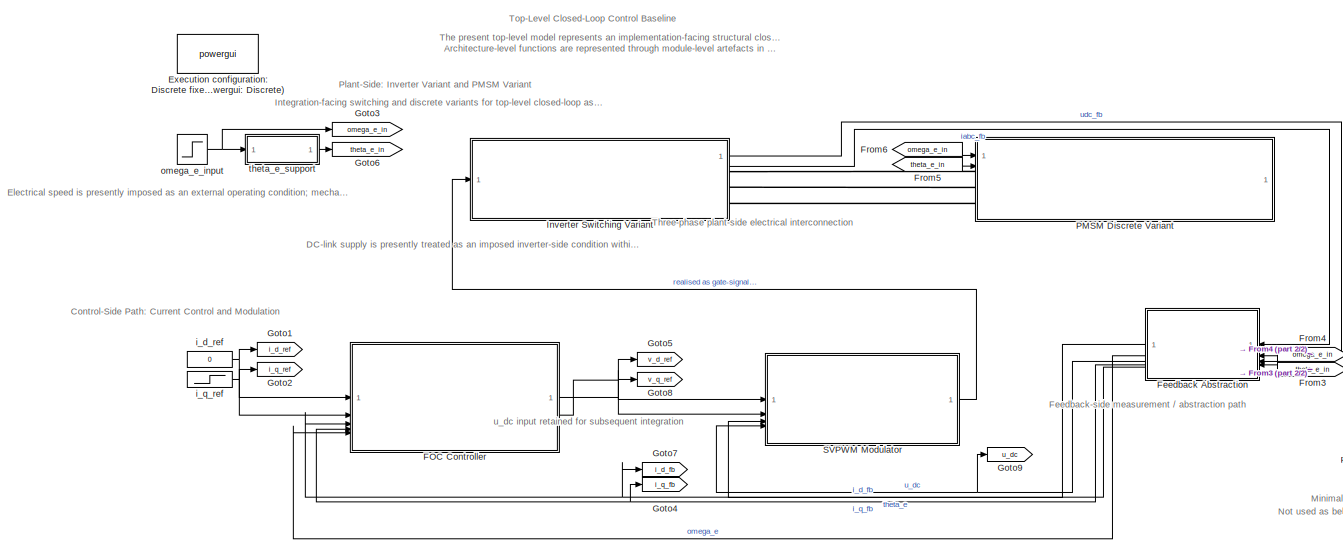
[diagram: root canvas - part 1/2, most of the canvas]
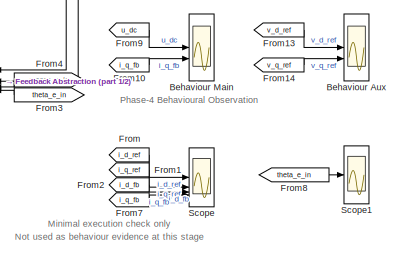
[diagram: root canvas - part 2/2, bottom right region]
MODEL slx_24abce73f3e8
KIND model
CONFIG AbsTol = auto
CONFIG EnableMultiTasking = off
CONFIG FixedStep = Ts
CONFIG MaxStep = auto
CONFIG MinStep = auto
CONFIG RelTol = 1e-3
CONFIG SampleTimeConstraint = Unconstrained
CONFIG SolverName = FixedStepDiscrete
CONFIG StartTime = 0.0
CONFIG StopTime = 0.1
WORKSPACE source: MATLAB code (in-file)
WORKSPACE Ts = 1e-6  (= 1e-06)
WORKSPACE i_d_ref_default = 0
WORKSPACE i_q_ref_default = 10
WORKSPACE omega_e_default = 300
WORKSPACE i_q_ref_step_t = 0.02
WORKSPACE i_q_ref_step_init = i_q_ref_default  (= 10)
WORKSPACE i_q_ref_step_final = i_q_ref_default  (= 10)
WORKSPACE omega_e_step_t = 0.02
WORKSPACE omega_e_init = omega_e_default  (= 300)
WORKSPACE omega_e_step_final = omega_e_default  (= 300)
BLOCK [Scope] Behaviour Aux
  Floating = off
  NumInputPorts = 2
  ScopeSpecificationString = Simulink.scopes.TimeScopeBlockCfg('CurrentConfiguration', extmgr.ConfigurationSet(extmgr.Configuration('Core','General UI',true),extmgr.Configuration('Core','Source UI',true),extmgr.Configuration('Sources','WiredSimulink',true,'DataLoggingVariableName','scope_aux','DataLoggingSaveFormat','StructureWithTime'),extmgr.Configuration('Visuals','Time Domain',true,'SerializedDisplays',{struct('MinYLimRea...<+1557ch>
BLOCK [Scope] Behaviour Main
  Floating = off
  NumInputPorts = 2
  ScopeSpecificationString = Simulink.scopes.TimeScopeBlockCfg('CurrentConfiguration', extmgr.ConfigurationSet(extmgr.Configuration('Core','General UI',true),extmgr.Configuration('Core','Source UI',true),extmgr.Configuration('Sources','WiredSimulink',true,'DataLoggingVariableName','case_scope','DataLoggingSaveFormat','StructureWithTime'),extmgr.Configuration('Visuals','Time Domain',true,'SerializedDisplays',{struct('MinYLimRe...<+2068ch>
BLOCK [Reference] Execution configuration: Discrete fixed-step (Ts = 1e-6 s) SPS environment (powergui: Discrete)  REF=sps_lib/powergui
  LibrarySourceBlock = sps_lib/powergui
  NameLocation = right
  Priority = 1
  SourceBlock = sps_lib/powergui
  SourceType = PSB option menu block
BLOCK [ModelReference] FOC Controller
  ModelNameDialog = foc_controller.slx
  ModelReferenceVersion = 1.26
  PortSchema = {"entries":[{"content":{"sides":[{"content":{"connectorIds":["In1","In2","In5","In3","In4"]},"type":"ConnectorPlacement.EquallySpacedRectSide","uuid":"ef112b4b-a133-4498-b633-78f8f1506d01"},{"content":{"connectorIds":["Out1","Out2"],"side":"RIGHT"},"type":"ConnectorPlacement.EquallySpacedRectSide","uuid":"9847a18b-aaef-4243-aa5c-65f99a7910c1"},{"content":{"side":"TOP"},"type":"ConnectorPlacement.E...<+253ch>
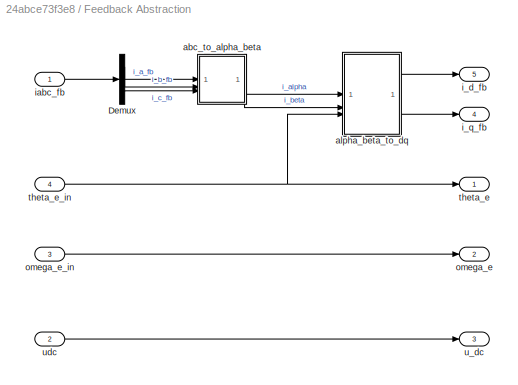
BLOCK [SubSystem] Feedback Abstraction
BLOCK [Demux] Feedback Abstraction/Demux
  Outputs = 3
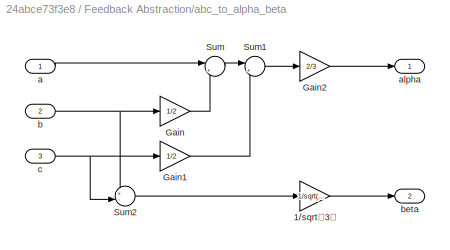
BLOCK [SubSystem] Feedback Abstraction/abc_to_alpha_beta
BLOCK [Gain] Feedback Abstraction/abc_to_alpha_beta/1//sqrt（3）
  Gain = 1/sqrt(3)
BLOCK [Gain] Feedback Abstraction/abc_to_alpha_beta/Gain
  Gain = 1/2
BLOCK [Gain] Feedback Abstraction/abc_to_alpha_beta/Gain1
  Gain = 1/2
BLOCK [Gain] Feedback Abstraction/abc_to_alpha_beta/Gain2
  Gain = 2/3
BLOCK [Sum] Feedback Abstraction/abc_to_alpha_beta/Sum
  Inputs = |+-
BLOCK [Sum] Feedback Abstraction/abc_to_alpha_beta/Sum1
  Inputs = |+-
BLOCK [Sum] Feedback Abstraction/abc_to_alpha_beta/Sum2
  Inputs = +-|
BLOCK [Inport] Feedback Abstraction/abc_to_alpha_beta/a
BLOCK [Outport] Feedback Abstraction/abc_to_alpha_beta/alpha
BLOCK [Inport] Feedback Abstraction/abc_to_alpha_beta/b
  Port = 2
BLOCK [Outport] Feedback Abstraction/abc_to_alpha_beta/beta
  Port = 2
BLOCK [Inport] Feedback Abstraction/abc_to_alpha_beta/c
  Port = 3
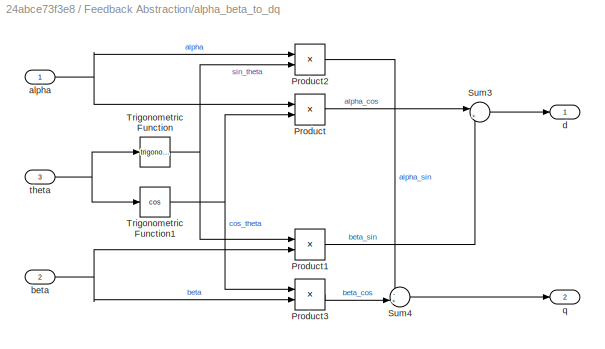
BLOCK [SubSystem] Feedback Abstraction/alpha_beta_to_dq
BLOCK [Product] Feedback Abstraction/alpha_beta_to_dq/Product
BLOCK [Product] Feedback Abstraction/alpha_beta_to_dq/Product1
BLOCK [Product] Feedback Abstraction/alpha_beta_to_dq/Product2
BLOCK [Product] Feedback Abstraction/alpha_beta_to_dq/Product3
BLOCK [Sum] Feedback Abstraction/alpha_beta_to_dq/Sum3
  Inputs = |++
BLOCK [Sum] Feedback Abstraction/alpha_beta_to_dq/Sum4
  Inputs = -+|
BLOCK [Trigonometry] Feedback Abstraction/alpha_beta_to_dq/Trigonometric Function
BLOCK [Trigonometry] Feedback Abstraction/alpha_beta_to_dq/Trigonometric Function1
  Operator = cos
BLOCK [Inport] Feedback Abstraction/alpha_beta_to_dq/alpha
BLOCK [Inport] Feedback Abstraction/alpha_beta_to_dq/beta
  Port = 2
BLOCK [Outport] Feedback Abstraction/alpha_beta_to_dq/d
BLOCK [Outport] Feedback Abstraction/alpha_beta_to_dq/q
  Port = 2
BLOCK [Inport] Feedback Abstraction/alpha_beta_to_dq/theta
  Port = 3
BLOCK [Outport] Feedback Abstraction/i_d_fb
  Port = 5
BLOCK [Outport] Feedback Abstraction/i_q_fb
  Port = 4
BLOCK [Inport] Feedback Abstraction/iabc_fb
BLOCK [Outport] Feedback Abstraction/omega_e
  Port = 2
BLOCK [Inport] Feedback Abstraction/omega_e_in
  Port = 3
BLOCK [Outport] Feedback Abstraction/theta_e
BLOCK [Inport] Feedback Abstraction/theta_e_in
  Port = 4
BLOCK [Outport] Feedback Abstraction/u_dc
  Port = 3
BLOCK [Inport] Feedback Abstraction/udc
  Port = 2
BLOCK [From] From
  GotoTag = i_d_ref
BLOCK [From] From1
  GotoTag = i_q_ref
BLOCK [From] From10
  GotoTag = i_q_fb
BLOCK [From] From13
  GotoTag = v_d_ref
BLOCK [From] From14
  GotoTag = v_q_ref
BLOCK [From] From2
  GotoTag = i_d_fb
BLOCK [From] From3
  GotoTag = theta_e_in
BLOCK [From] From4
  GotoTag = omega_e_in
BLOCK [From] From5
  GotoTag = theta_e_in
BLOCK [From] From6
  GotoTag = omega_e_in
BLOCK [From] From7
  GotoTag = i_q_fb
BLOCK [From] From8
  GotoTag = theta_e_in
BLOCK [From] From9
  GotoTag = u_dc
BLOCK [Goto] Goto1
  GotoTag = i_d_ref
  NameLocation = top
BLOCK [Goto] Goto2
  GotoTag = i_q_ref
  NameLocation = top
BLOCK [Goto] Goto3
  GotoTag = omega_e_in
  NameLocation = top
BLOCK [Goto] Goto4
  GotoTag = i_q_fb
  NameLocation = top
BLOCK [Goto] Goto5
  GotoTag = v_d_ref
  NameLocation = top
BLOCK [Goto] Goto6
  GotoTag = theta_e_in
  NameLocation = top
BLOCK [Goto] Goto7
  GotoTag = i_d_fb
  NameLocation = top
BLOCK [Goto] Goto8
  GotoTag = v_q_ref
  NameLocation = top
BLOCK [Goto] Goto9
  GotoTag = u_dc
  NameLocation = top
BLOCK [SubSystem] Inverter Switching Variant
  ReferencedSubsystem = inverter_switching_variant_closed_loop
BLOCK [SubSystem] PMSM Discrete Variant
  Ld = 2e-3
  Lq = 2e-3
  ReferencedSubsystem = pmsm_discrete_variant_closed_loop
  Rs = 0.05
  lambda_f = 0.1
BLOCK [ModelReference] SVPWM Modulator
  ModelNameDialog = svpwm_modulator.slx
  ModelReferenceVersion = 1.34
  PortSchema = {"entries":[{"content":{"sides":[{"content":{"connectorIds":["In1","In2","In4","In3"]},"type":"ConnectorPlacement.EquallySpacedRectSide","uuid":"0e0645a3-2a27-4c15-9a47-960d3777f31f"},{"content":{"connectorIds":["Out1"],"side":"RIGHT"},"type":"ConnectorPlacement.EquallySpacedRectSide","uuid":"17890dc1-ee5f-46a3-bfa4-af9c9726f2d2"},{"content":{"side":"TOP"},"type":"ConnectorPlacement.EquallySpacedR...<+240ch>
BLOCK [Scope] Scope
  Floating = off
  NumInputPorts = 4
  ScopeSpecificationString = Simulink.scopes.TimeScopeBlockCfg('CurrentConfiguration', extmgr.ConfigurationSet(extmgr.Configuration('Core','General UI',true),extmgr.Configuration('Core','Source UI',true),extmgr.Configuration('Sources','WiredSimulink',true,'DataLoggingVariableName','ScopeData1','SampleTime','Ts'),extmgr.Configuration('Visuals','Time Domain',true,'SerializedDisplays',{struct('MinYLimReal','-1.00000','MaxYLimRea...<+3440ch>
BLOCK [Scope] Scope1
  Floating = off
  NumInputPorts = 1
  ScopeSpecificationString = Simulink.scopes.TimeScopeBlockCfg('CurrentConfiguration', extmgr.ConfigurationSet(extmgr.Configuration('Core','General UI',true),extmgr.Configuration('Core','Source UI',true),extmgr.Configuration('Sources','WiredSimulink',true,'DataLoggingVariableName','ScopeData2','SampleTime','Ts'),extmgr.Configuration('Visuals','Time Domain',true,'SerializedDisplays',{struct('MinYLimReal','-0.00125','MaxYLimRea...<+1484ch>
BLOCK [Constant] i_d_ref
  NameLocation = top
  SampleTime = Ts
  Value = 0
BLOCK [Step] i_q_ref
  After = i_q_ref_step_final
  Before = i_q_ref_step_init
  SampleTime = Ts
  Time = i_q_ref_step_t
BLOCK [Step] omega_e_input
  After = omega_e_step_final
  Before = omega_e_init
  SampleTime = Ts
  Time = omega_e_step_t
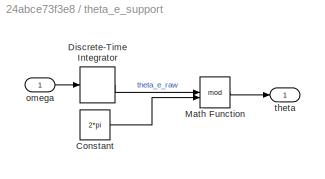
BLOCK [SubSystem] theta_e_support
BLOCK [Constant] theta_e_support/Constant
  Value = 2*pi
BLOCK [DiscreteIntegrator] theta_e_support/Discrete-Time Integrator
  ICPrevOutput = DiscIntNeverNeededParam
  ICPrevScaledInput = DiscIntNeverNeededParam
  InitialConditionSetting = Auto
  SampleTime = Ts
BLOCK [Math] theta_e_support/Math Function
  Operator = mod
BLOCK [Inport] theta_e_support/omega
BLOCK [Outport] theta_e_support/theta
ANNOTATION (root): Feedback-side measurement / abstraction path
ANNOTATION (root): Three-phase plant-side electrical interconnection
ANNOTATION (root): The present top-level model represents an implementation-facing structural closed-loop baseline Architecture-level functions are represented through module-level artefacts in the present executable baseline
ANNOTATION (root): Top-Level Closed-Loop Control Baseline
ANNOTATION (root): u_dc input retained for subsequent integration
ANNOTATION (root): Control-Side Path: Current Control and Modulation
ANNOTATION (root): Plant-Side: Inverter Variant and PMSM Variant
ANNOTATION (root): DC-link supply is presently treated as an imposed inverter-side condition within the switching variant
ANNOTATION (root): Electrical speed is presently imposed as an external operating condition; mechanical-speed dynamics are outside the current structural closed-loop baseline.
ANNOTATION (root): Integration-facing switching and discrete variants for top-level closed-loop assembly
ANNOTATION (root): Phase-4 Behavioural Observation
ANNOTATION (root): Minimal execution check only
ANNOTATION (root): Not used as behaviour evidence at this stage
NET FOC Controller:1 -> Goto5:1, SVPWM Modulator:1
NET FOC Controller:2 -> Goto8:1, SVPWM Modulator:2
LINE Feedback Abstraction/Demux:1 -> Feedback Abstraction/abc_to_alpha_beta:1
LINE Feedback Abstraction/Demux:2 -> Feedback Abstraction/abc_to_alpha_beta:2
LINE Feedback Abstraction/Demux:3 -> Feedback Abstraction/abc_to_alpha_beta:3
LINE Feedback Abstraction/abc_to_alpha_beta/1//sqrt（3）:1 -> Feedback Abstraction/abc_to_alpha_beta/beta:1
LINE Feedback Abstraction/abc_to_alpha_beta/Gain1:1 -> Feedback Abstraction/abc_to_alpha_beta/Sum1:2
LINE Feedback Abstraction/abc_to_alpha_beta/Gain2:1 -> Feedback Abstraction/abc_to_alpha_beta/alpha:1
LINE Feedback Abstraction/abc_to_alpha_beta/Gain:1 -> Feedback Abstraction/abc_to_alpha_beta/Sum:2
LINE Feedback Abstraction/abc_to_alpha_beta/Sum1:1 -> Feedback Abstraction/abc_to_alpha_beta/Gain2:1
LINE Feedback Abstraction/abc_to_alpha_beta/Sum2:1 -> Feedback Abstraction/abc_to_alpha_beta/1//sqrt（3）:1
LINE Feedback Abstraction/abc_to_alpha_beta/Sum:1 -> Feedback Abstraction/abc_to_alpha_beta/Sum1:1
LINE Feedback Abstraction/abc_to_alpha_beta/a:1 -> Feedback Abstraction/abc_to_alpha_beta/Sum:1
NET Feedback Abstraction/abc_to_alpha_beta/b:1 -> Feedback Abstraction/abc_to_alpha_beta/Gain:1, Feedback Abstraction/abc_to_alpha_beta/Sum2:1
NET Feedback Abstraction/abc_to_alpha_beta/c:1 -> Feedback Abstraction/abc_to_alpha_beta/Gain1:1, Feedback Abstraction/abc_to_alpha_beta/Sum2:2
LINE Feedback Abstraction/abc_to_alpha_beta:1 -> Feedback Abstraction/alpha_beta_to_dq:1
LINE Feedback Abstraction/abc_to_alpha_beta:2 -> Feedback Abstraction/alpha_beta_to_dq:2
LINE Feedback Abstraction/alpha_beta_to_dq/Product1:1 -> Feedback Abstraction/alpha_beta_to_dq/Sum3:2
LINE Feedback Abstraction/alpha_beta_to_dq/Product2:1 -> Feedback Abstraction/alpha_beta_to_dq/Sum4:1
LINE Feedback Abstraction/alpha_beta_to_dq/Product3:1 -> Feedback Abstraction/alpha_beta_to_dq/Sum4:2
LINE Feedback Abstraction/alpha_beta_to_dq/Product:1 -> Feedback Abstraction/alpha_beta_to_dq/Sum3:1
LINE Feedback Abstraction/alpha_beta_to_dq/Sum3:1 -> Feedback Abstraction/alpha_beta_to_dq/d:1
LINE Feedback Abstraction/alpha_beta_to_dq/Sum4:1 -> Feedback Abstraction/alpha_beta_to_dq/q:1
NET Feedback Abstraction/alpha_beta_to_dq/Trigonometric Function1:1 -> Feedback Abstraction/alpha_beta_to_dq/Product3:1, Feedback Abstraction/alpha_beta_to_dq/Product:2
NET Feedback Abstraction/alpha_beta_to_dq/Trigonometric Function:1 -> Feedback Abstraction/alpha_beta_to_dq/Product1:1, Feedback Abstraction/alpha_beta_to_dq/Product2:2
NET Feedback Abstraction/alpha_beta_to_dq/alpha:1 -> Feedback Abstraction/alpha_beta_to_dq/Product2:1, Feedback Abstraction/alpha_beta_to_dq/Product:1
NET Feedback Abstraction/alpha_beta_to_dq/beta:1 -> Feedback Abstraction/alpha_beta_to_dq/Product1:2, Feedback Abstraction/alpha_beta_to_dq/Product3:2
NET Feedback Abstraction/alpha_beta_to_dq/theta:1 -> Feedback Abstraction/alpha_beta_to_dq/Trigonometric Function1:1, Feedback Abstraction/alpha_beta_to_dq/Trigonometric Function:1
LINE Feedback Abstraction/alpha_beta_to_dq:1 -> Feedback Abstraction/i_d_fb:1
LINE Feedback Abstraction/alpha_beta_to_dq:2 -> Feedback Abstraction/i_q_fb:1
LINE Feedback Abstraction/iabc_fb:1 -> Feedback Abstraction/Demux:1
LINE Feedback Abstraction/omega_e_in:1 -> Feedback Abstraction/omega_e:1
NET Feedback Abstraction/theta_e_in:1 -> Feedback Abstraction/alpha_beta_to_dq:3, Feedback Abstraction/theta_e:1
LINE Feedback Abstraction/udc:1 -> Feedback Abstraction/u_dc:1
LINE Feedback Abstraction:1 -> SVPWM Modulator:3
LINE Feedback Abstraction:2 -> FOC Controller:5
NET Feedback Abstraction:3 -> Goto9:1, SVPWM Modulator:4
NET Feedback Abstraction:4 -> FOC Controller:4, Goto4:1
NET Feedback Abstraction:5 -> FOC Controller:3, Goto7:1
LINE From10:1 -> Behaviour Main:2
LINE From13:1 -> Behaviour Aux:1
LINE From14:1 -> Behaviour Aux:2
LINE From1:1 -> Scope:2
LINE From2:1 -> Scope:3
LINE From3:1 -> Feedback Abstraction:4
LINE From4:1 -> Feedback Abstraction:3
LINE From5:1 -> PMSM Discrete Variant:2
LINE From6:1 -> PMSM Discrete Variant:1
LINE From7:1 -> Scope:4
LINE From8:1 -> Scope1:1
LINE From9:1 -> Behaviour Main:1
LINE From:1 -> Scope:1
LINE Inverter Switching Variant:1 -> Feedback Abstraction:2
LINE Inverter Switching Variant:2 -> Feedback Abstraction:1
LINE SVPWM Modulator:1 -> Inverter Switching Variant:1
NET i_d_ref:1 -> FOC Controller:1, Goto1:1
NET i_q_ref:1 -> FOC Controller:2, Goto2:1
NET omega_e_input:1 -> Goto3:1, theta_e_support:1
LINE theta_e_support/Constant:1 -> theta_e_support/Math Function:2
LINE theta_e_support/Discrete-Time Integrator:1 -> theta_e_support/Math Function:1
LINE theta_e_support/Math Function:1 -> theta_e_support/theta:1
LINE theta_e_support/omega:1 -> theta_e_support/Discrete-Time Integrator:1
LINE theta_e_support:1 -> Goto6:1
PLINE Inverter Switching Variant:RConn1 -- PMSM Discrete Variant:LConn1
PLINE Inverter Switching Variant:RConn2 -- PMSM Discrete Variant:LConn2
PLINE Inverter Switching Variant:RConn3 -- PMSM Discrete Variant:LConn3
note: NET lines group one-source signal fan-out (src -> all destinations, sorted); 1:1 wires keep LINE
